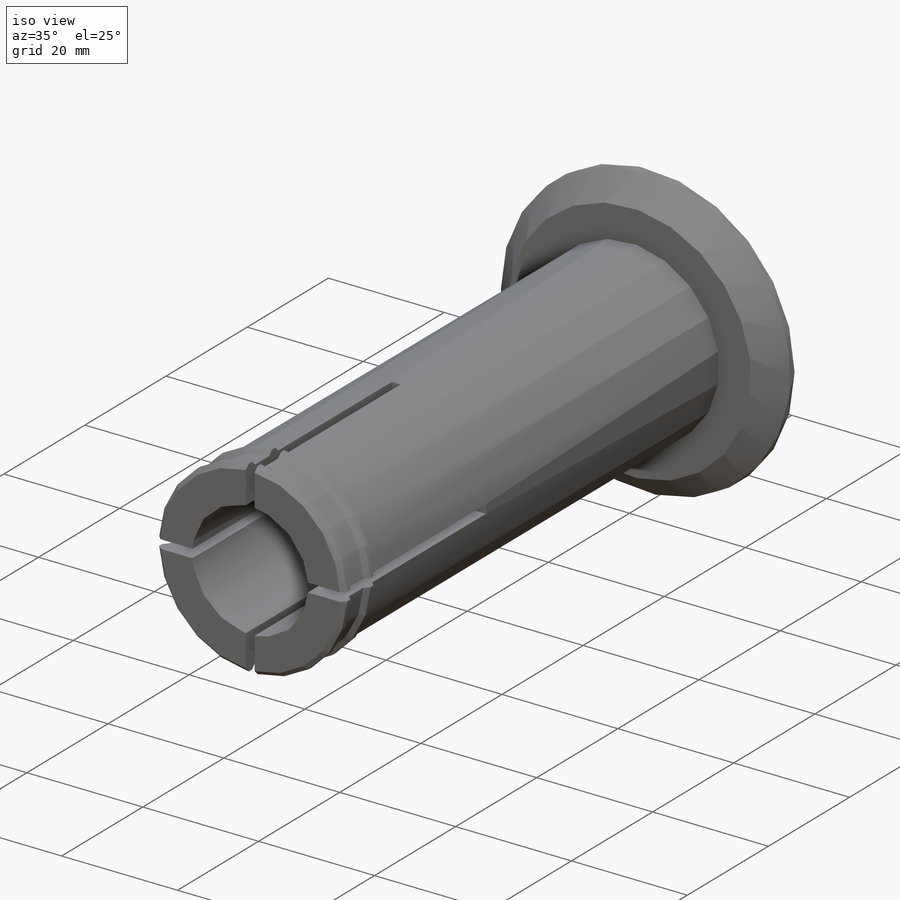
[diagram: iso view]
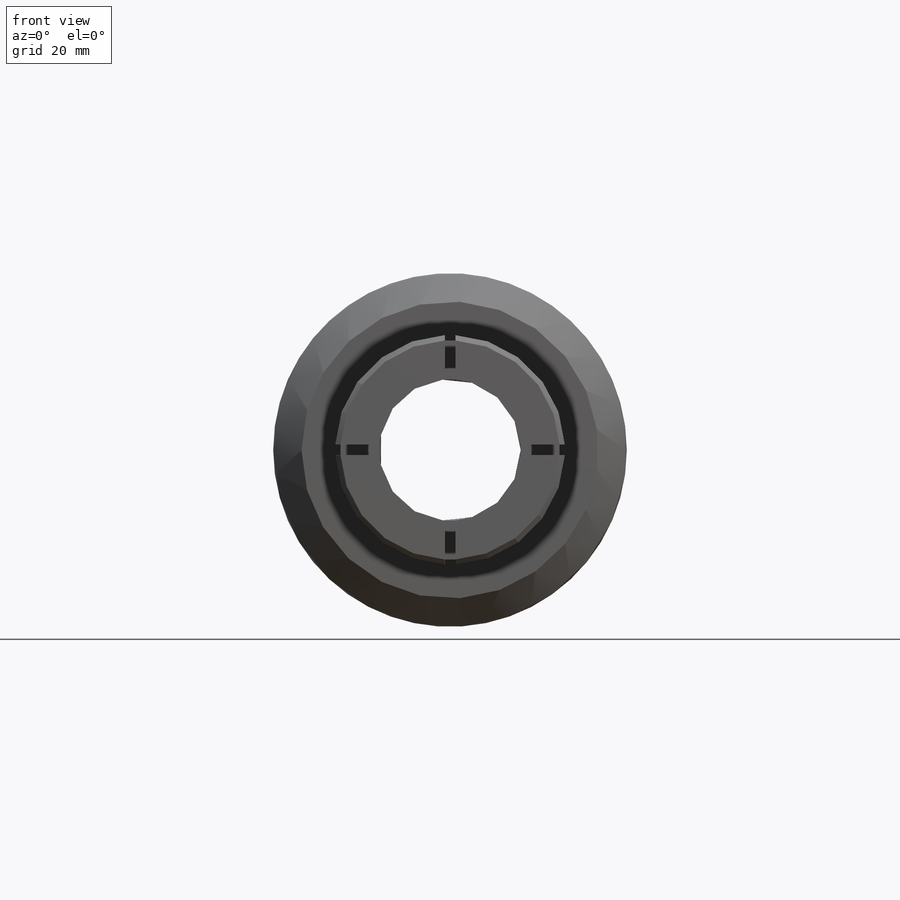
[diagram: front view]
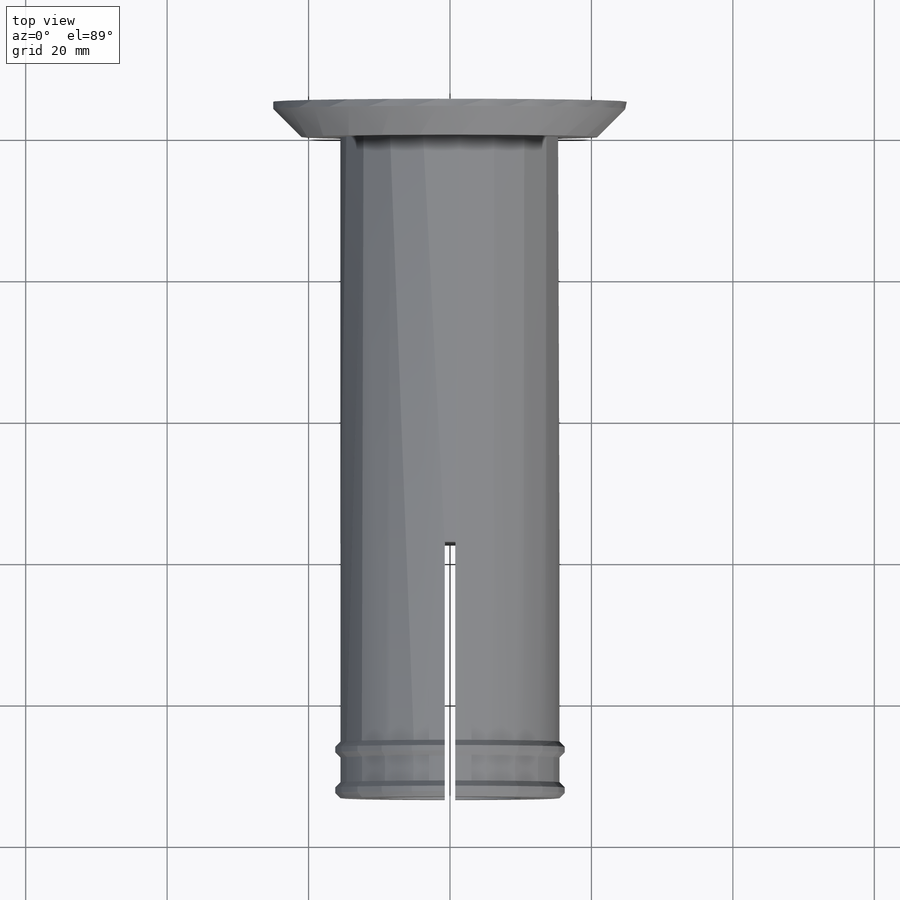
[diagram: top view]
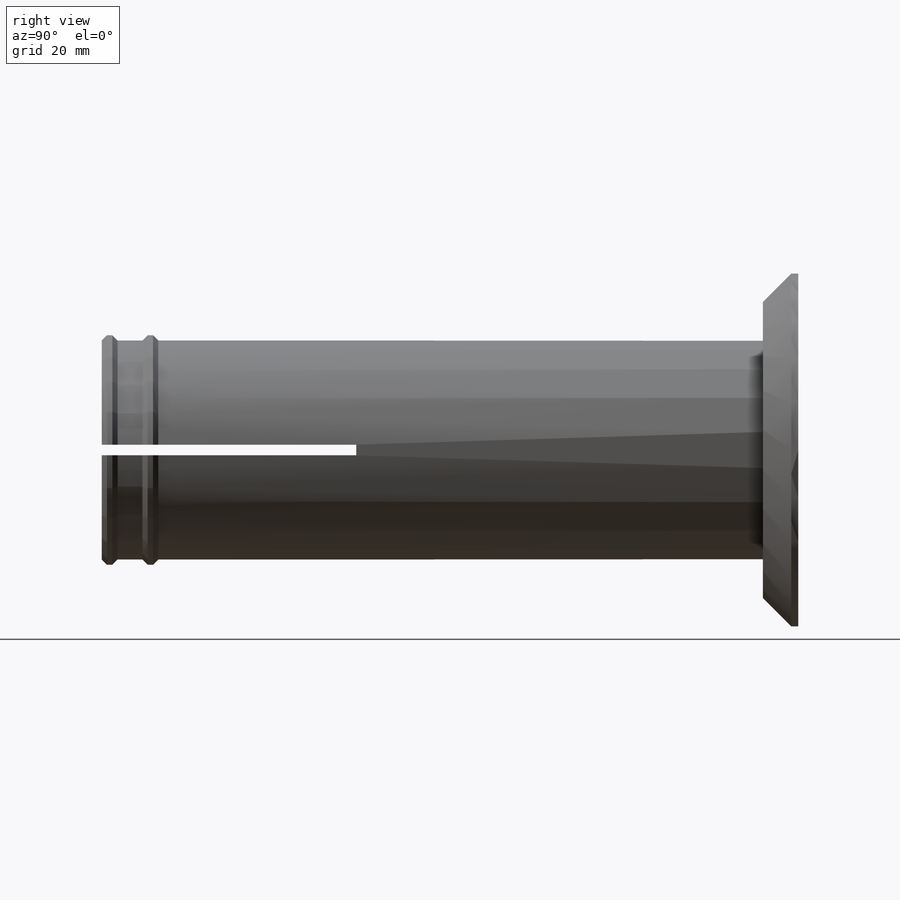
[diagram: right view]
SOLIDWORKS PART (.sldprt)
format: sldprt  version: not decoded by parser v0  size: 342,528 bytes
history: native  units: mm
features: sketch x5, extrude x2, cut_extrude x2, material x1, revolve x1, pattern_circular x1, chamfer x1 (+12 scaffold rows collapsed)
feature tree (25):
  scaffold x12  (default folders/planes/origin — collapsed)
  material  "Material <not specified>"
  sketch  "Axle base sketch"  dims[D1=31.0mm D2=17.0mm]
  extrude  "Axle"  Depth=93.5mm
  sketch  "Guard base"  dims[D1=50.0mm]
  extrude  "Guard"  Depth=5mm
  sketch  "Inner axle hole base"  dims[D1=20.0mm]
  cut_extrude  "Inner axle hole"  [1 undecoded]
  sketch  "Mate ring base"  dims[c1.D1=135.0deg c2.D1=0.75mm c2.D2=0.75mm c2.D3=5.0mm c2.D4=0.75mm]
  revolve  "Mate rings"  Angle=360deg
  sketch  "Bend room base"  dims[D1=0.75mm D2=0.75mm D3=25.0mm D4=25.0mm]
  cut_extrude  "Bend room 1"  Depth=36mm
  pattern_circular  "Bend room 2"  Count=2 Angle=90deg
  chamfer  "Chamfer1"  Distance=4mm Angle=45deg
decode coverage: 11 of 12 modeling features carry decoded parameters
note: 1 parameter value undecoded
note: suppression state not decoded; provenance and decode notes live in map.json
